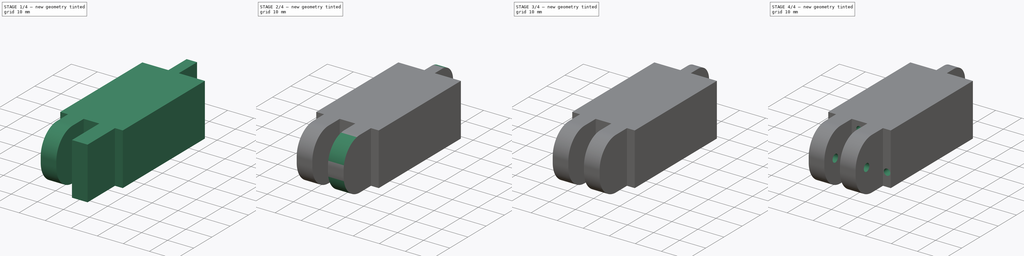
[diagram: build sequence overview — one tinted view per stage of 4, left to right]
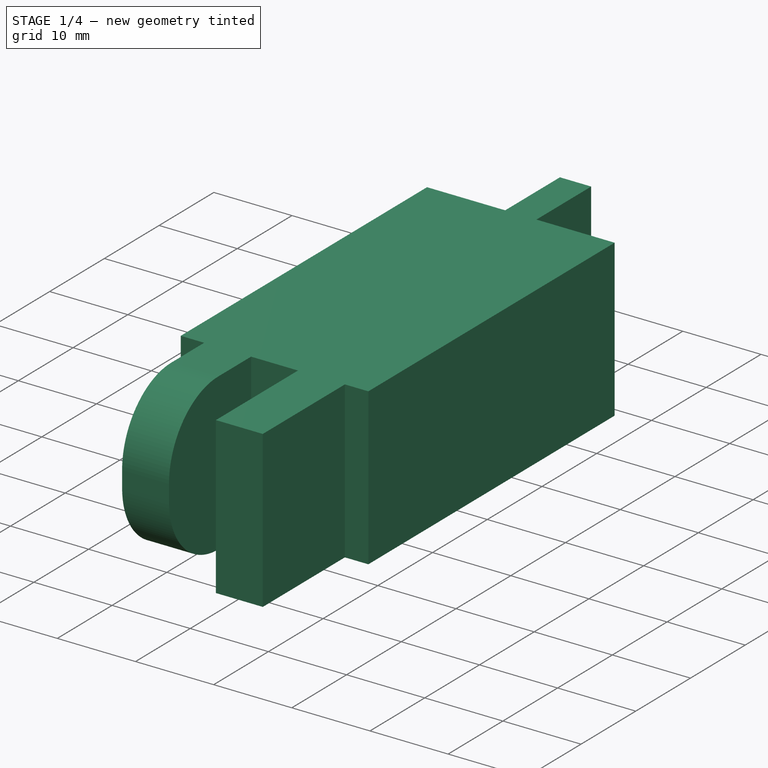
[diagram: stage 1 of 4 — iso view after this stage's code; geometry added in this stage tinted green]
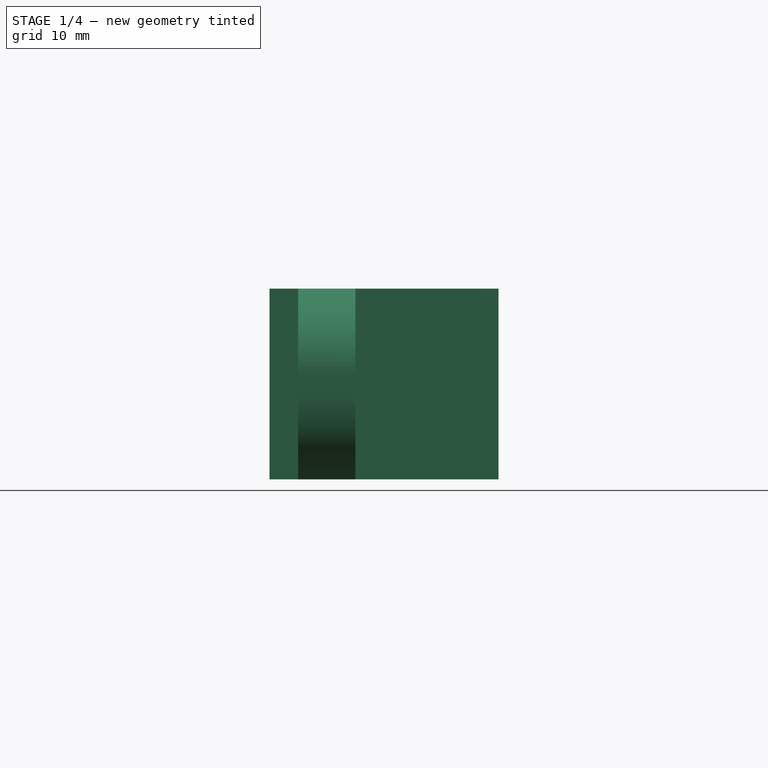
[diagram: stage 1 of 4 — front view after this stage's code; geometry added in this stage tinted green]
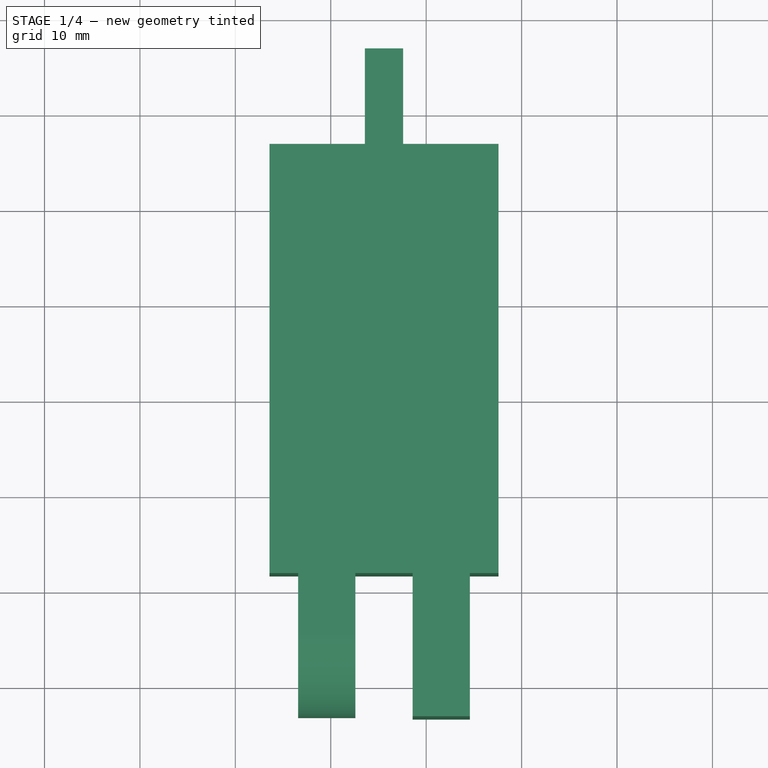
[diagram: stage 1 of 4 — top view after this stage's code; geometry added in this stage tinted green]
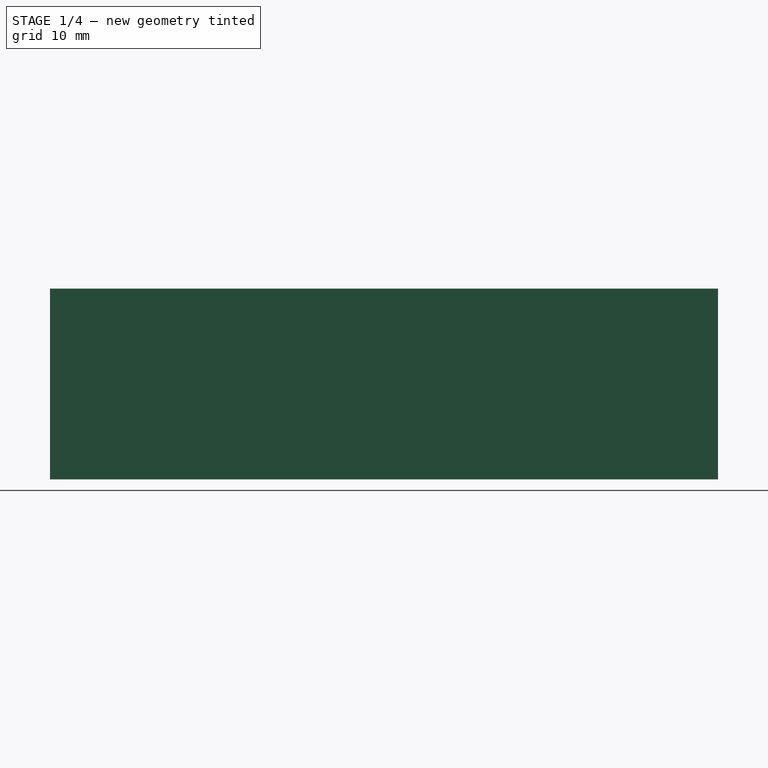
[diagram: stage 1 of 4 — right view after this stage's code; geometry added in this stage tinted green]
FCSTD DOCUMENT  (FreeCAD 0.20R29601 (Git))
Label: finger_proximal_final
License: All rights reserved
LicenseURL: http://en.wikipedia.org/wiki/All_rights_reserved
objects: PartDesign::Fillet×6, Sketcher::SketchObject×5, PartDesign::Pocket×4, PartDesign::Pad×1, PartDesign::Body×1
note: 28 computed .brp shape members not serialized (recipe doc carries the construction recipe); baked Part::Feature solids carry a one-line shape summary decoded from their .brp

FEATURE [Sketcher::SketchObject] Sketch
  FullyConstrained = false
  MapMode = 5
  Support = -> [XY_Plane]
  sketch-geometry (16):
    g0: LineSegment StartX=-56.4196 StartY=26.7222 StartZ=0 EndX=-46.4196 EndY=26.7222 EndZ=0
    g1: LineSegment StartX=-46.4196 StartY=26.7222 StartZ=0 EndX=-46.4196 EndY=36.7222 EndZ=0
    g2: LineSegment StartX=-46.4196 StartY=36.7222 StartZ=0 EndX=-42.4196 EndY=36.7222 EndZ=0
    g3: LineSegment StartX=-42.4196 StartY=36.7222 StartZ=0 EndX=-42.4196 EndY=26.7222 EndZ=0
    g4: LineSegment StartX=-42.4196 StartY=26.7222 StartZ=0 EndX=-32.4196 EndY=26.7222 EndZ=0
    g5: LineSegment StartX=-32.4196 StartY=26.7222 StartZ=0 EndX=-32.4196 EndY=-18.2778 EndZ=0
    g6: LineSegment StartX=-32.4196 StartY=-18.2778 StartZ=0 EndX=-35.4196 EndY=-18.2778 EndZ=0
    g7: LineSegment StartX=-35.4196 StartY=-18.2778 StartZ=0 EndX=-35.4196 EndY=-33.2778 EndZ=0
    g8: LineSegment StartX=-35.4196 StartY=-33.2778 StartZ=0 EndX=-41.4196 EndY=-33.2778 EndZ=0
    g9: LineSegment StartX=-41.4196 StartY=-33.2778 StartZ=0 EndX=-41.4196 EndY=-18.2778 EndZ=0
    g10: LineSegment StartX=-41.4196 StartY=-18.2778 StartZ=0 EndX=-47.4196 EndY=-18.2778 EndZ=0
    g11: LineSegment StartX=-47.4196 StartY=-18.2778 StartZ=0 EndX=-47.4196 EndY=-33.2778 EndZ=0
    g12: LineSegment StartX=-47.4196 StartY=-33.2778 StartZ=0 EndX=-53.4196 EndY=-33.2778 EndZ=0
    g13: LineSegment StartX=-53.4196 StartY=-33.2778 StartZ=0 EndX=-53.4196 EndY=-18.2778 EndZ=0
    g14: LineSegment StartX=-53.4196 StartY=-18.2778 StartZ=0 EndX=-56.4196 EndY=-18.2778 EndZ=0
    g15: LineSegment StartX=-56.4196 StartY=-18.2778 StartZ=0 EndX=-56.4196 EndY=26.7222 EndZ=0
  constraints (46):
    c: Horizontal(g0)
    c: Coincident(g0,g1)
    c: Vertical(g1)
    c: Coincident(g1,g2)
    c: Coincident(g2,g3)
    c: Vertical(g3)
    c: Coincident(g3,g4)
    c: Horizontal(g4)
    c: Coincident(g4,g5)
    c: Vertical(g5)
    c: Coincident(g5,g6)
    c: Coincident(g6,g7)
    c: Coincident(g7,g8)
    c: Horizontal(g8)
    c: Coincident(g8,g9)
    c: Vertical(g9)
    c: Coincident(g9,g10)
    c: Coincident(g10,g11)
    c: Coincident(g11,g12)
    c: Coincident(g12,g13)
    c: Vertical(g13)
    c: Coincident(g13,g14)
    c: Coincident(g14,g15)
    c: Coincident(g15,g0)
    c: Vertical(g15)
    c: Horizontal(g10)
    c: Horizontal(g6)
    c: Horizontal(g14)
    c: Vertical(g11)
    c: Vertical(g7)
    c: Horizontal(g2)
    c: Distance(g14) = 3
    c: Distance(g6) = 3
    c: Horizontal(g12)
    c: Distance(g12) = 6
    c: Distance(g10) = 6
    c: Distance(g8) = 6
    c: Distance(g13) = 15
    c: Distance(g9) = 15
    c: Distance(g7) = 15
    c: Distance(g5) = 45
    c: Distance(g15) = 45
    c: Distance(g1) = 10
    c: Distance(g3) = 10
    c: Distance(g2) = 4
    c: Distance(g0) = 10
FEATURE [PartDesign::Pad] Pad
  Direction = (0,0,1)
  Length = 20
  Length2 = 10
  Profile = -> Sketch
  ReferenceAxis = -> Sketch [N_Axis]
  Type = 0
FEATURE [PartDesign::Fillet] Fillet
  Base = -> Pad [Edge39]
  BaseFeature = -> Pad
  Radius = 9
  SupportTransform = false
  UseAllEdges = false
FEATURE [PartDesign::Fillet] Fillet001
  Base = -> Fillet [Edge7]
  BaseFeature = -> Fillet
  Radius = 9
  SupportTransform = false
  UseAllEdges = false
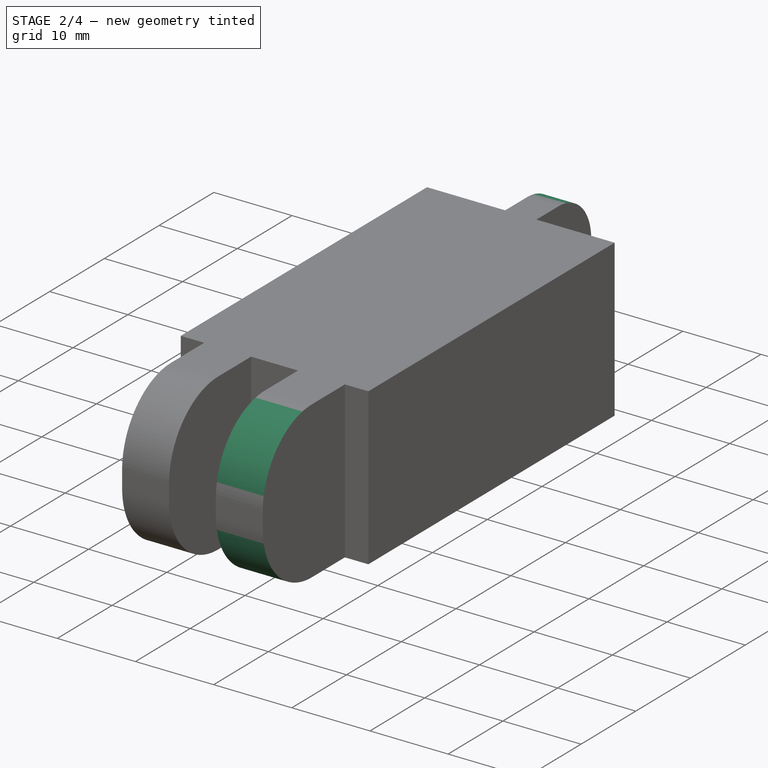
[diagram: stage 2 of 4 — iso view after this stage's code; geometry added in this stage tinted green]
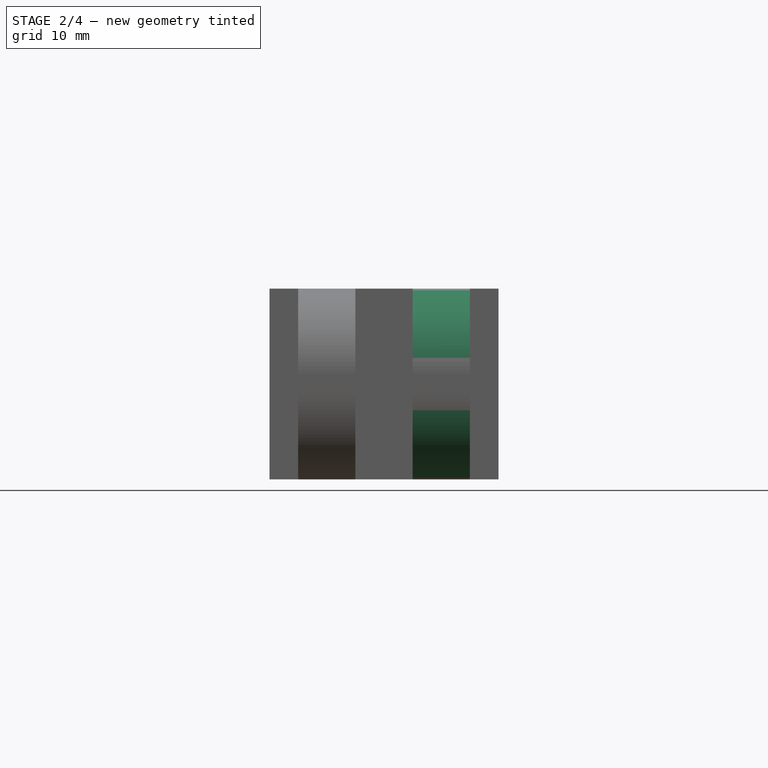
[diagram: stage 2 of 4 — front view after this stage's code; geometry added in this stage tinted green]
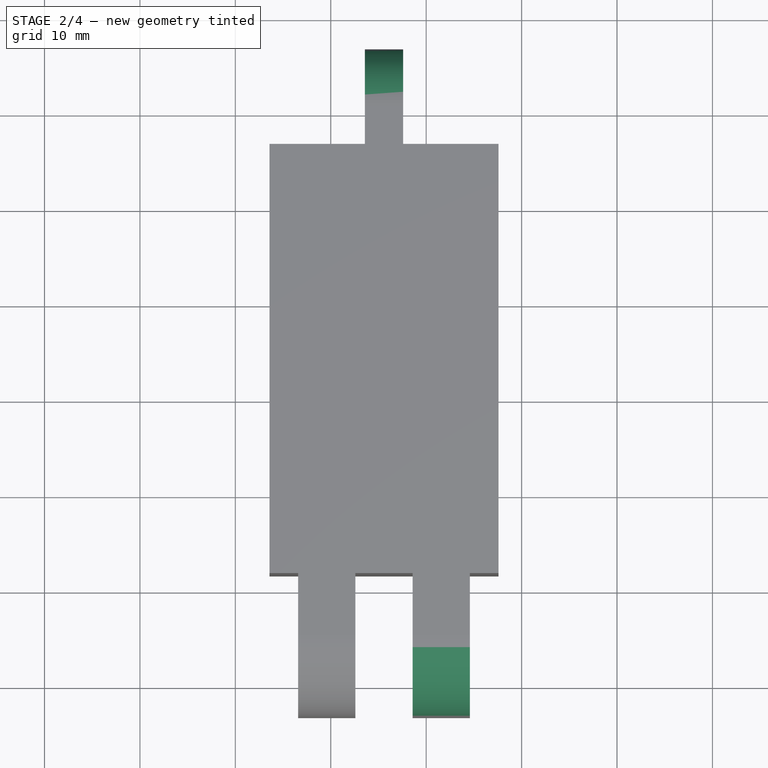
[diagram: stage 2 of 4 — top view after this stage's code; geometry added in this stage tinted green]
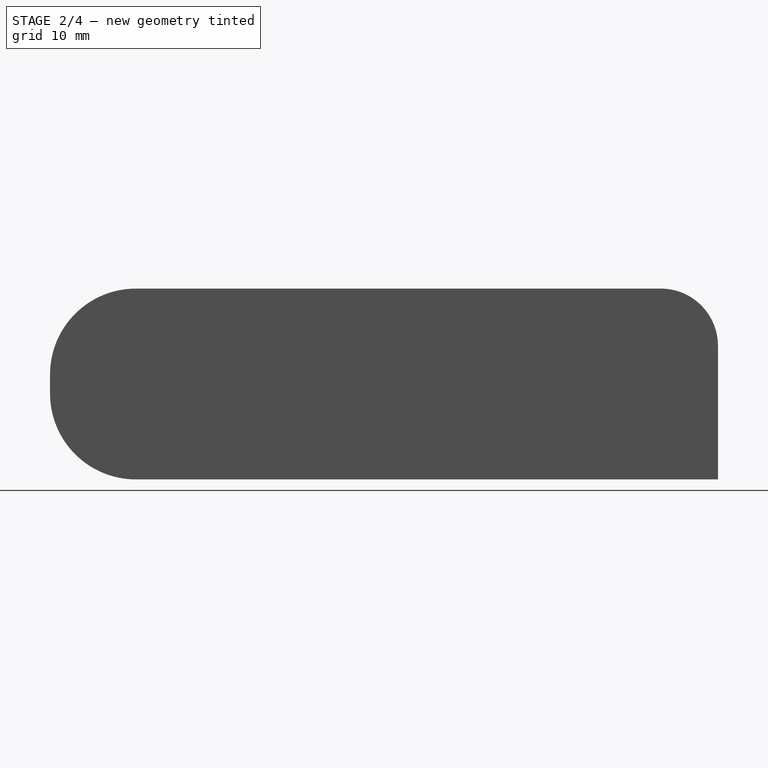
[diagram: stage 2 of 4 — right view after this stage's code; geometry added in this stage tinted green]
FEATURE [PartDesign::Fillet] Fillet002
  Base = -> Fillet001 [Edge18]
  BaseFeature = -> Fillet001
  Radius = 9
  SupportTransform = false
  UseAllEdges = false
FEATURE [PartDesign::Fillet] Fillet003
  Base = -> Fillet002 [Edge55]
  BaseFeature = -> Fillet002
  Radius = 9
  SupportTransform = false
  UseAllEdges = false
FEATURE [PartDesign::Fillet] Fillet004
  Base = -> Fillet003 [Edge39]
  BaseFeature = -> Fillet003
  Radius = 6
  SupportTransform = false
  UseAllEdges = false
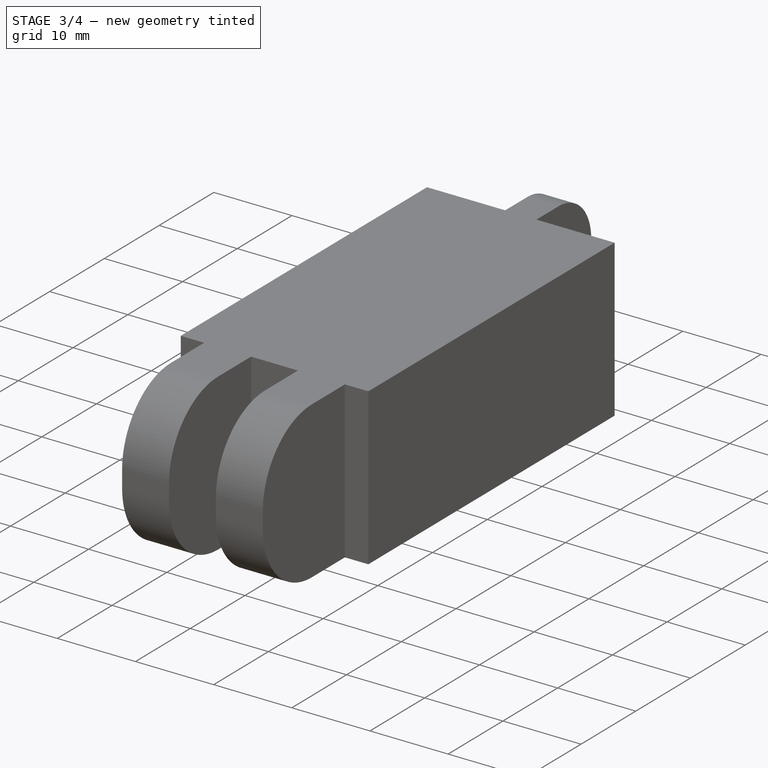
[diagram: stage 3 of 4 — iso view after this stage's code; geometry added in this stage tinted green]
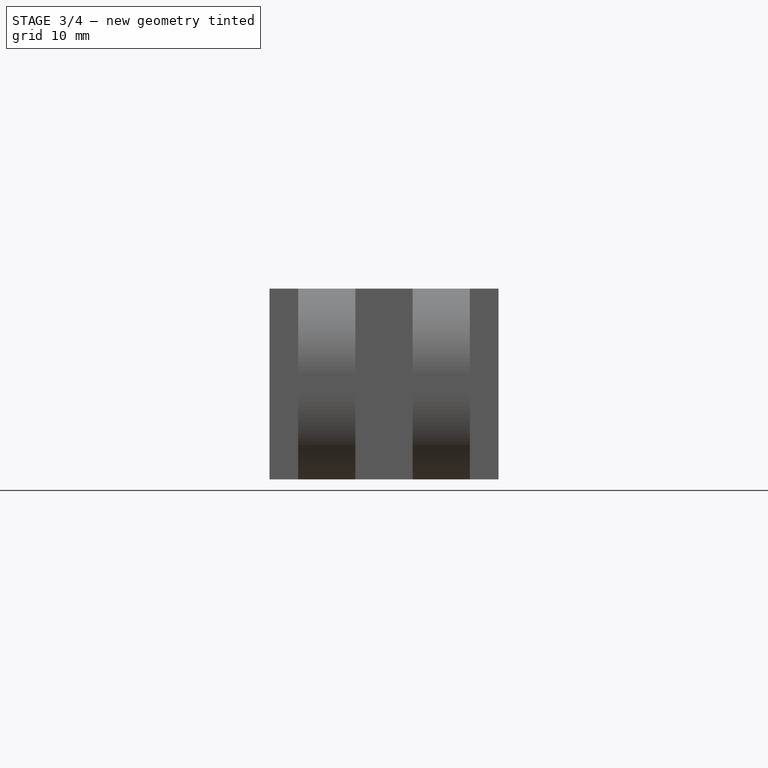
[diagram: stage 3 of 4 — front view after this stage's code; geometry added in this stage tinted green]
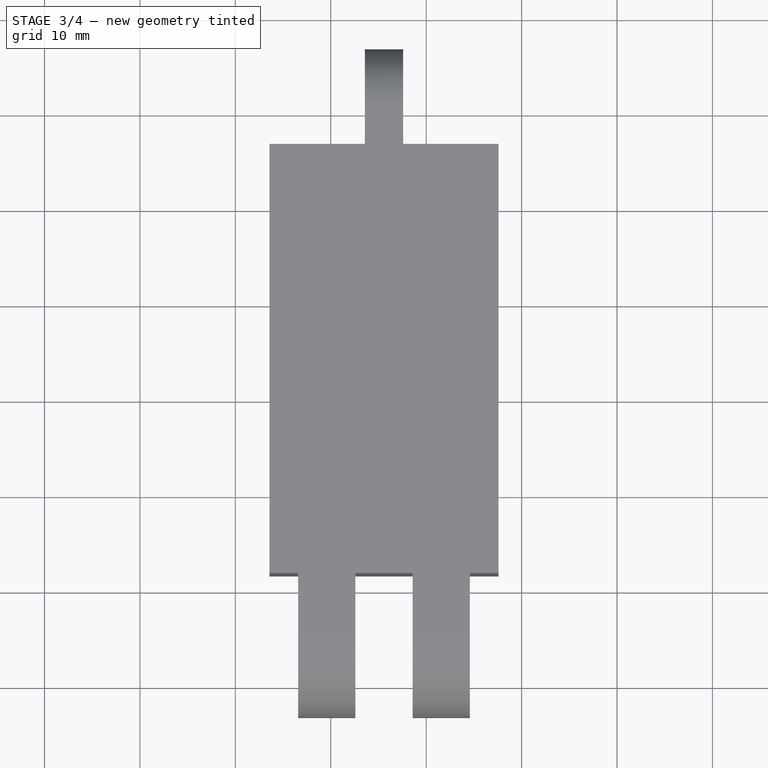
[diagram: stage 3 of 4 — top view after this stage's code; geometry added in this stage tinted green]
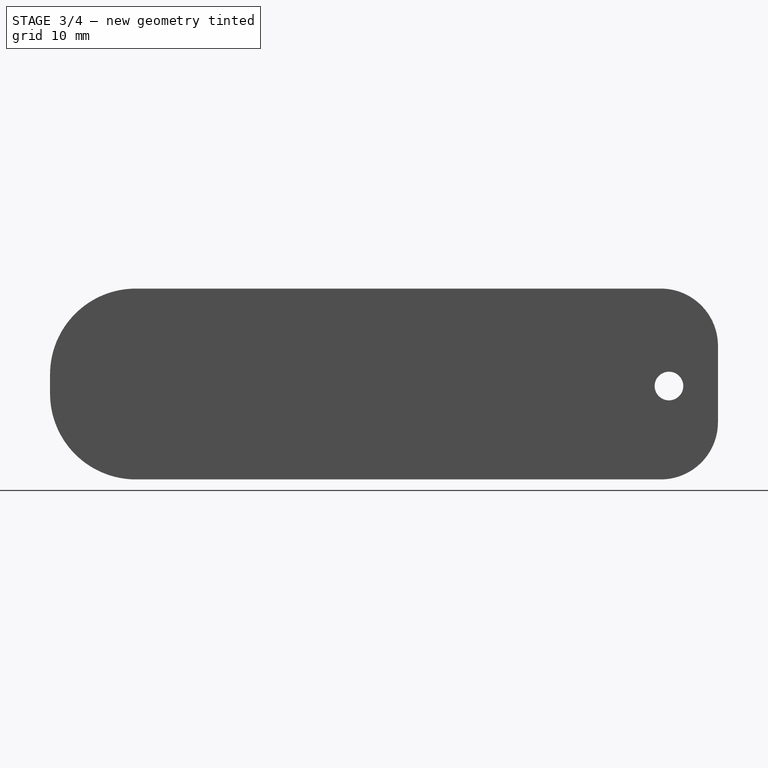
[diagram: stage 3 of 4 — right view after this stage's code; geometry added in this stage tinted green]
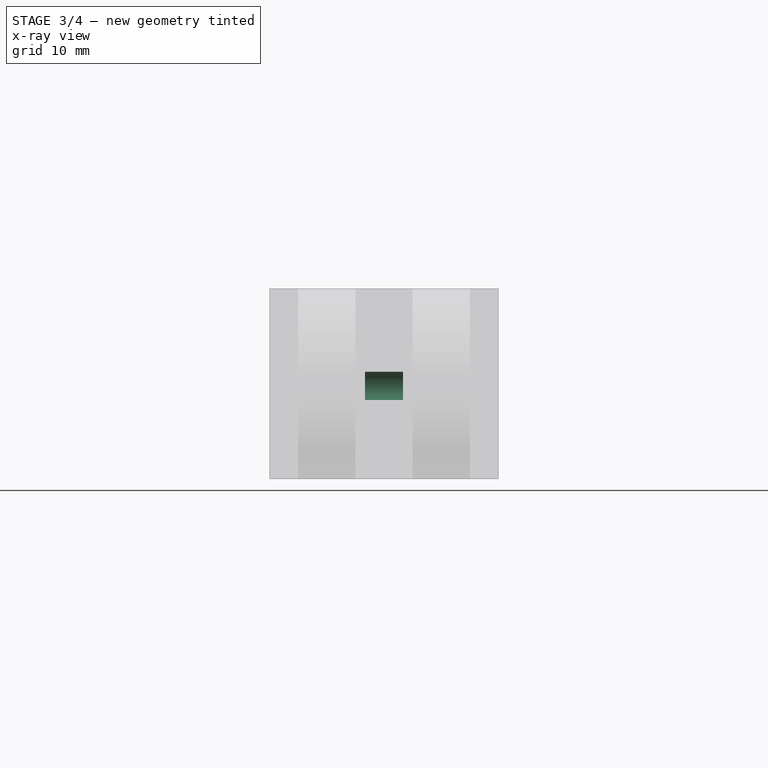
[diagram: stage 3 of 4 — x-ray composite at the front view; earlier geometry ghosted, this stage's added geometry solid]
FEATURE [PartDesign::Fillet] Fillet005
  Base = -> Fillet004 [Edge59]
  BaseFeature = -> Fillet004
  Radius = 6
  SupportTransform = false
  UseAllEdges = false
FEATURE [Sketcher::SketchObject] Sketch002
  FullyConstrained = false
  MapMode = 5
  Placement = pos=(-42.4196,0,0) rot=(0.57735,0.57735,0.57735;2.0944rad)
  sketch-geometry (1):
    g0: Circle CenterX=31.5878 CenterY=9.78668 CenterZ=0 NormalX=0 NormalY=0 NormalZ=1 AngleXU=0 Radius=1.5
  constraints (1):
    c: Diameter(g0) = 3
FEATURE [PartDesign::Pocket] Pocket001
  BaseFeature = -> Fillet005
  Direction = (-1,0,0)
  Length = 5
  Length2 = 5
  Profile = -> Sketch002
  ReferenceAxis = -> Sketch002 [N_Axis]
  Type = 1
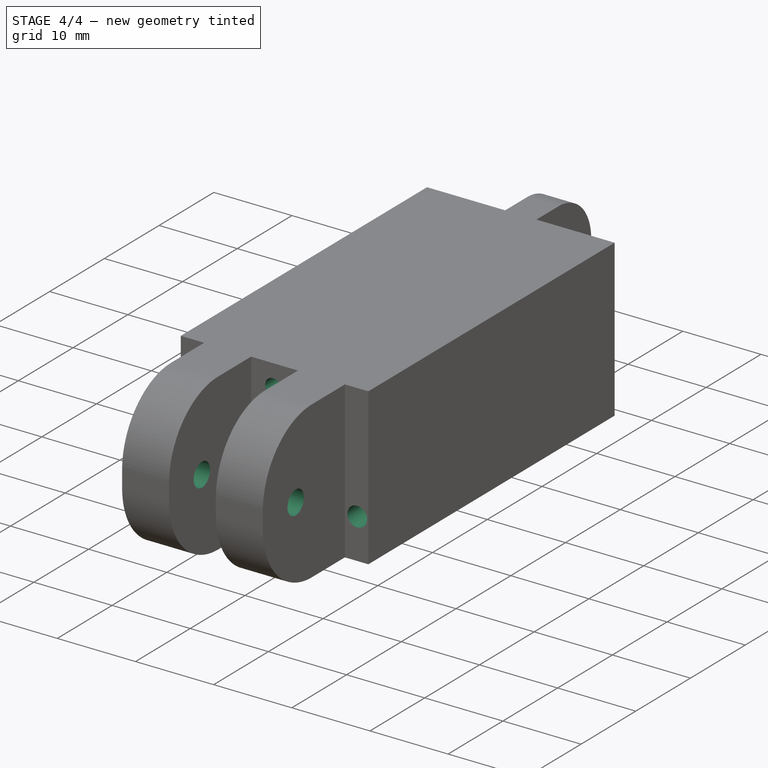
[diagram: stage 4 of 4 — iso view after this stage's code; geometry added in this stage tinted green]
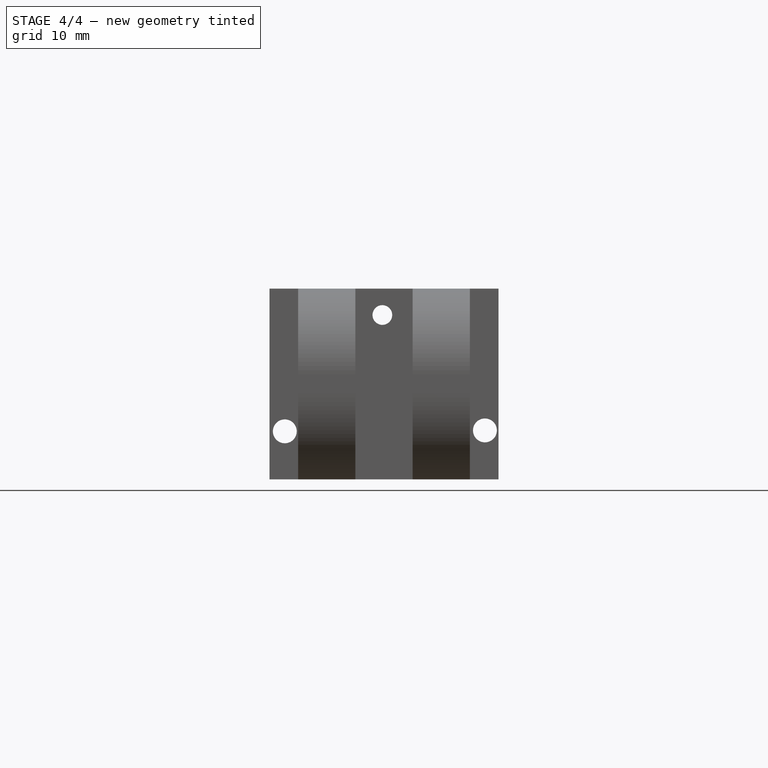
[diagram: stage 4 of 4 — front view after this stage's code; geometry added in this stage tinted green]
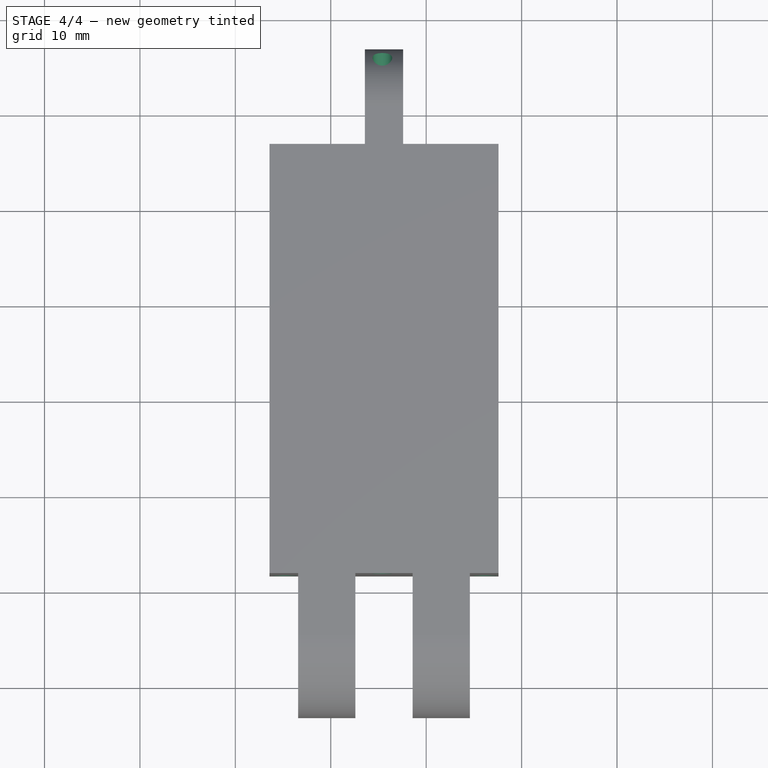
[diagram: stage 4 of 4 — top view after this stage's code; geometry added in this stage tinted green]
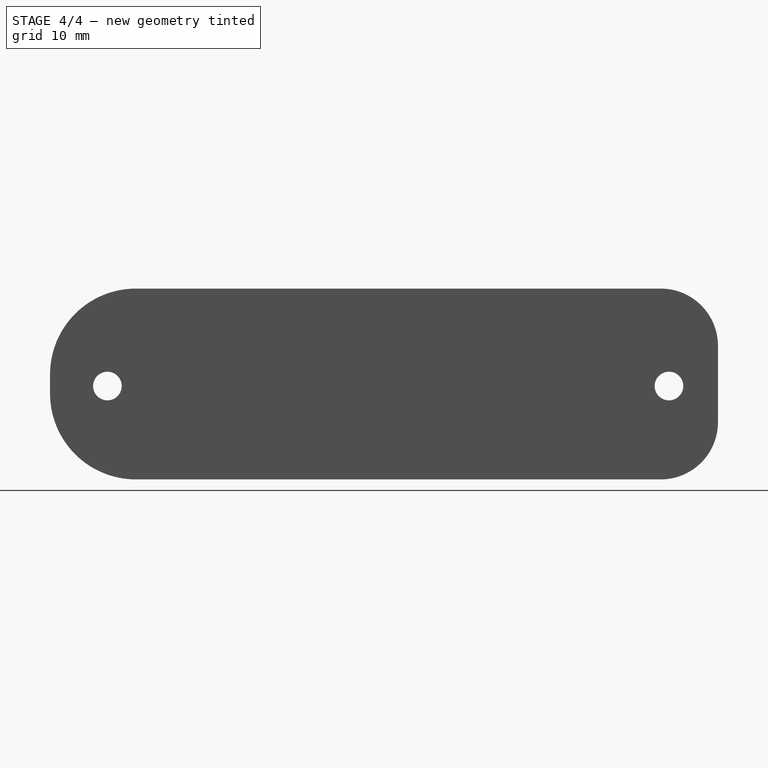
[diagram: stage 4 of 4 — right view after this stage's code; geometry added in this stage tinted green]
FEATURE [Sketcher::SketchObject] Sketch003
  FullyConstrained = false
  MapMode = 5
  Placement = pos=(-35.4196,0,0) rot=(0.57735,0.57735,0.57735;2.0944rad)
  Support = -> [Pocket001]
  sketch-geometry (1):
    g0: Circle CenterX=-27.2648 CenterY=9.78669 CenterZ=0 NormalX=0 NormalY=0 NormalZ=1 AngleXU=0 Radius=1.5
FEATURE [PartDesign::Pocket] Pocket
  BaseFeature = -> Pocket001
  Direction = (-1,0,0)
  Length = 5
  Length2 = 5
  Profile = -> Sketch003
  ReferenceAxis = -> Sketch003 [N_Axis]
  Type = 1
FEATURE [Sketcher::SketchObject] Sketch004
  FullyConstrained = false
  MapMode = 5
  Placement = pos=(0,-18.2778,0) rot=(1,0,0;1.5708rad)
  Support = -> [Pocket]
  sketch-geometry (2):
    g0: Circle CenterX=-54.8152 CenterY=5.04076 CenterZ=0 NormalX=0 NormalY=0 NormalZ=1 AngleXU=0 Radius=1.25
    g1: Circle CenterX=-33.8423 CenterY=5.13609 CenterZ=0 NormalX=0 NormalY=0 NormalZ=1 AngleXU=0 Radius=1.25
FEATURE [PartDesign::Pocket] Pocket002
  BaseFeature = -> Pocket
  Direction = (0,1,-2e-16)
  Length = 5
  Length2 = 5
  Profile = -> Sketch004
  ReferenceAxis = -> Sketch004 [N_Axis]
  Type = 1
FEATURE [Sketcher::SketchObject] Sketch005
  FullyConstrained = false
  MapMode = 5
  Placement = pos=(0,-18.2778,0) rot=(1,0,0;1.5708rad)
  Support = -> [Pocket002]
  sketch-geometry (1):
    g0: Circle CenterX=-44.5917 CenterY=17.2298 CenterZ=0 NormalX=0 NormalY=0 NormalZ=1 AngleXU=0 Radius=1.03189
FEATURE [PartDesign::Pocket] Pocket003
  BaseFeature = -> Pocket002
  Direction = (0,1,-2e-16)
  Length = 5
  Length2 = 5
  Profile = -> Sketch005
  ReferenceAxis = -> Sketch005 [N_Axis]
  Type = 1
FEATURE [PartDesign::Body] Body
  Group = -> [Sketch,Pad,Fillet,Fillet001,Fillet002,Fillet003,Fillet004,Fillet005,Sketch002,Pocket001,Sketch003,Pocket,Sketch004,Pocket002,Sketch005,Pocket003]
  Origin = -> Origin
  Tip = -> Pocket003
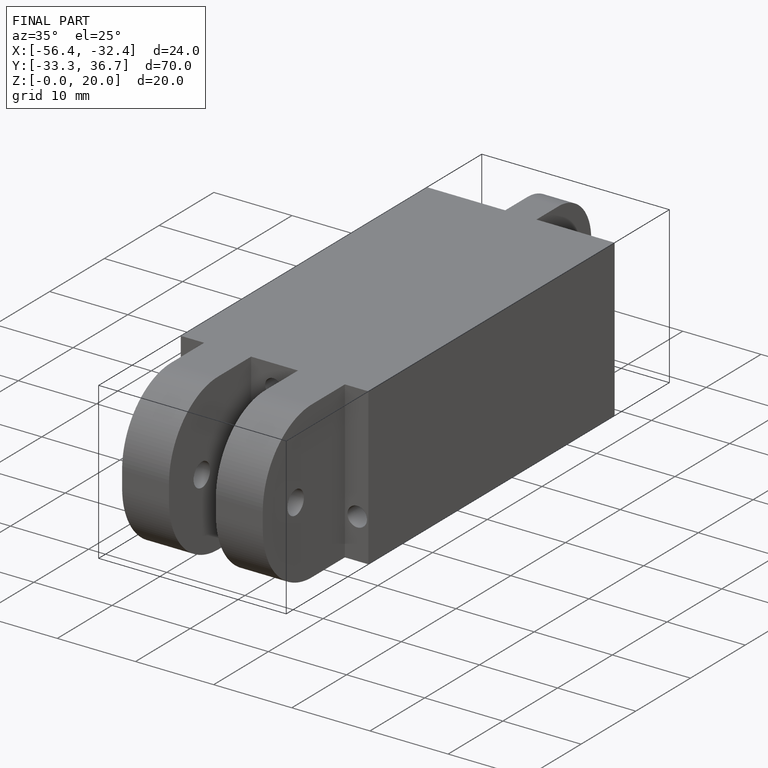
[diagram: finished part — iso view with bounding-box wireframe]
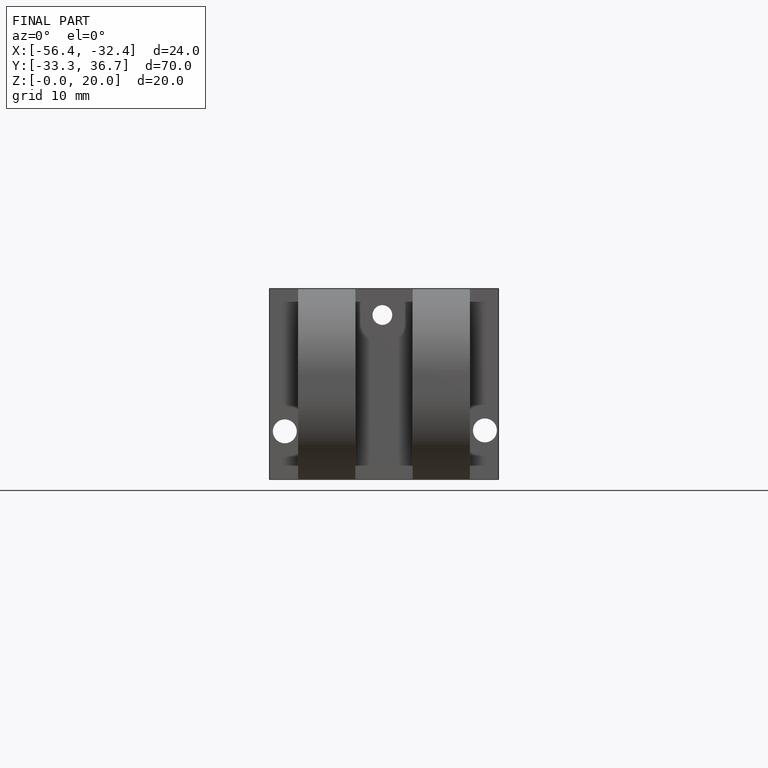
[diagram: finished part — front view with bounding-box wireframe]
